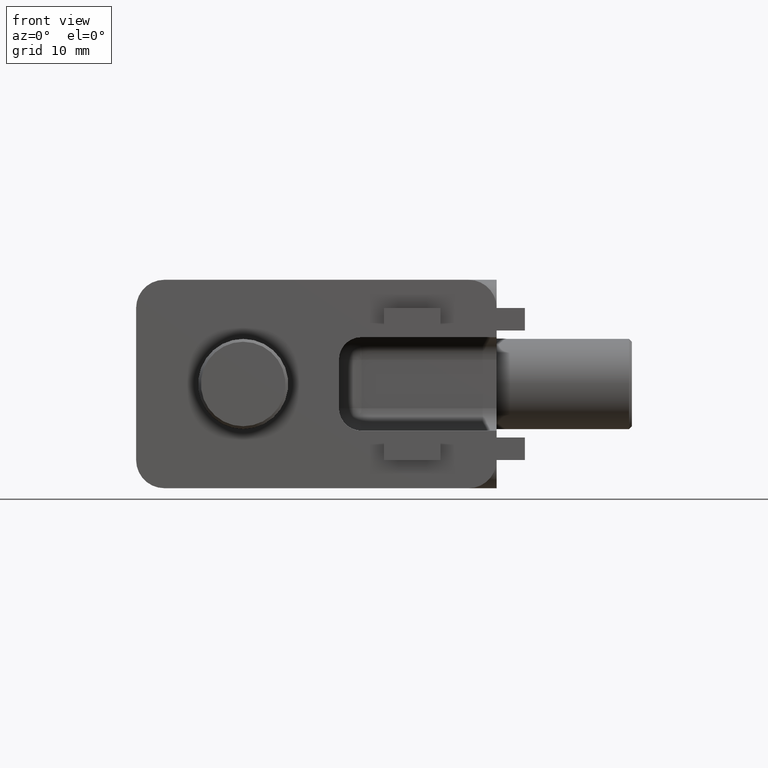
[diagram: clean part render]
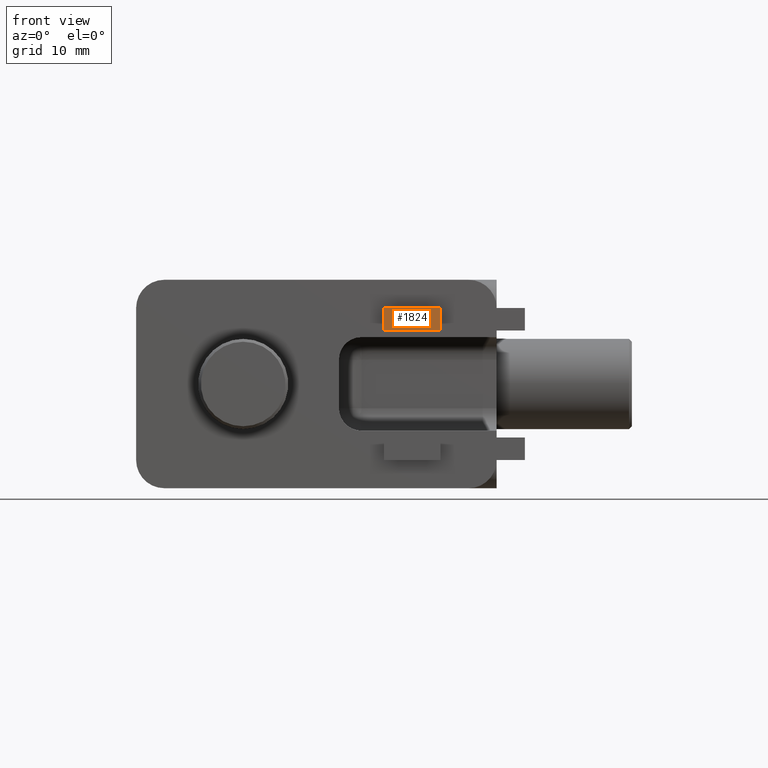
[diagram: same view with one face highlighted and labeled with its STEP entity id]
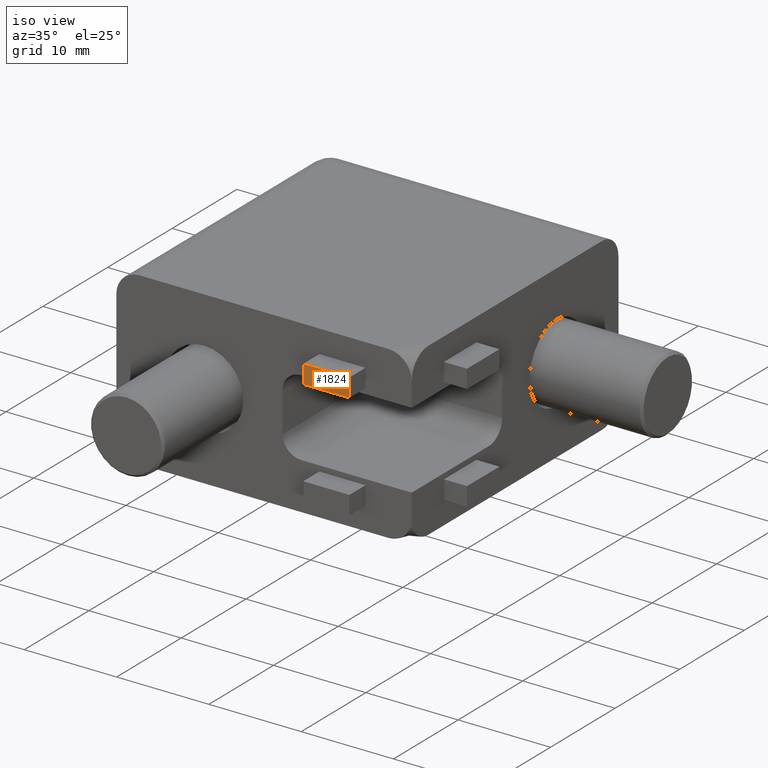
[diagram: same view with one face highlighted and labeled with its STEP entity id]
A machine part, front view. The second image highlights one B-rep face of the part: STEP entity #1824.
A second angle (iso view) of the same face is appended — the face is thin or edge-on in the first view.
In plain terms, the highlighted planar face has unit normal (-0, -1, 0).
Its self-contained STEP definition (entity closure, byte-faithful):
#81=PLANE('',#2007);
#186=FACE_OUTER_BOUND('',#311,.T.);
#311=EDGE_LOOP('',(#1496,#1497,#1498,#1499));
#476=LINE('',#3032,#650);
#479=LINE('',#3037,#653);
#481=LINE('',#3041,#655);
#482=LINE('',#3043,#656);
#650=VECTOR('',#2384,1000.);
#653=VECTOR('',#2389,1000.);
#655=VECTOR('',#2393,1000.);
#656=VECTOR('',#2396,1000.);
#896=VERTEX_POINT('',#3029);
#897=VERTEX_POINT('',#3031);
#898=VERTEX_POINT('',#3035);
#899=VERTEX_POINT('',#3039);
#1109=EDGE_CURVE('',#896,#897,#476,.T.);
#1112=EDGE_CURVE('',#898,#896,#479,.T.);
#1114=EDGE_CURVE('',#899,#898,#481,.T.);
#1115=EDGE_CURVE('',#897,#899,#482,.T.);
#1496=ORIENTED_EDGE('',*,*,#1109,.F.);
#1497=ORIENTED_EDGE('',*,*,#1112,.F.);
#1498=ORIENTED_EDGE('',*,*,#1114,.F.);
#1499=ORIENTED_EDGE('',*,*,#1115,.F.);
#1824=ADVANCED_FACE('',(#186),#81,.T.);
#2007=AXIS2_PLACEMENT_3D('',#3044,#2397,#2398);
#2384=DIRECTION('',(1.,-3.33066907387547E-15,0.));
#2389=DIRECTION('',(0.,0.,1.));
#2393=DIRECTION('',(-1.,3.33066907387547E-15,0.));
#2396=DIRECTION('',(0.,0.,-1.));
#2397=DIRECTION('center_axis',(-3.5527136788005E-15,-1.,0.));
#2398=DIRECTION('ref_axis',(0.,0.,-1.));
#3029=CARTESIAN_POINT('',(6.72485697219706,-16.4477143550449,6.75));
#3031=CARTESIAN_POINT('',(11.7248569721971,-16.4477143550449,6.75));
#3032=CARTESIAN_POINT('',(6.72485697219706,-16.4477143550449,6.75));
#3035=CARTESIAN_POINT('',(6.72485697219706,-16.4477143550449,4.75));
#3037=CARTESIAN_POINT('',(6.72485697219706,-16.4477143550449,6.75));
#3039=CARTESIAN_POINT('',(11.7248569721971,-16.4477143550449,4.75));
#3041=CARTESIAN_POINT('',(6.72485697219706,-16.4477143550449,4.75));
#3043=CARTESIAN_POINT('',(11.7248569721971,-16.4477143550449,6.75));
#3044=CARTESIAN_POINT('Origin',(11.7248569721971,-16.4477143550449,6.75));